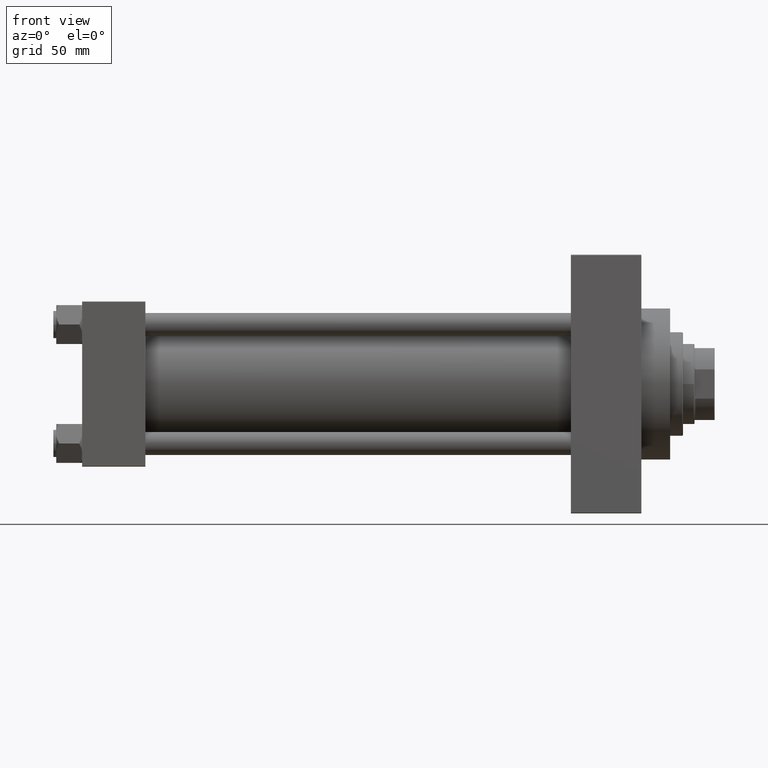
[diagram: clean part render]
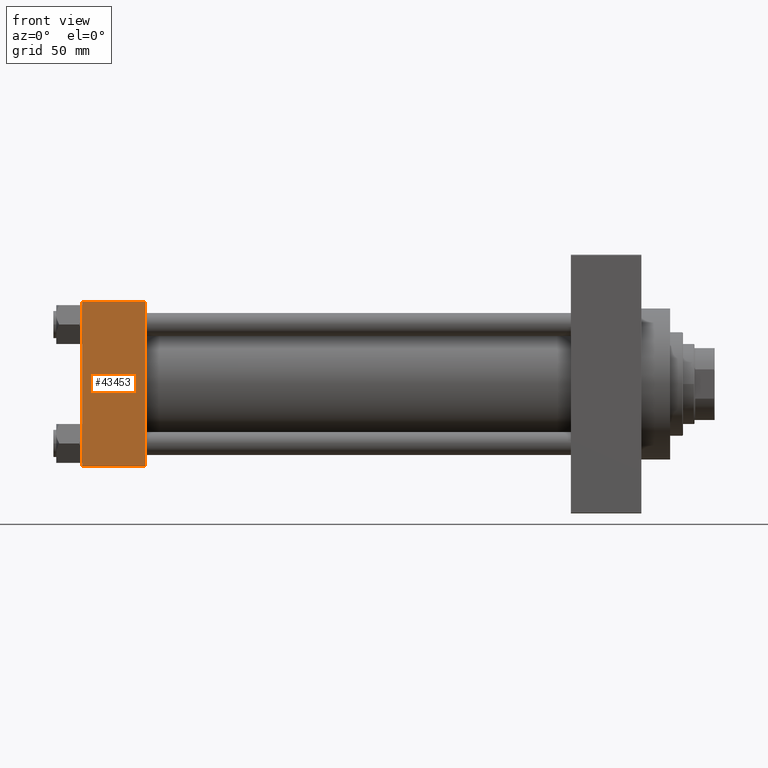
[diagram: same view with one face highlighted and labeled with its STEP entity id]
A machine part, front view. The second image highlights one B-rep face of the part: STEP entity #43453.
In plain terms, the highlighted planar face has unit normal (0, 1, 0).
Its self-contained STEP definition (entity closure, byte-faithful):
#82 = VERTEX_POINT ( 'NONE', #12409 ) ;
#1007 = CARTESIAN_POINT ( 'NONE',  ( 0.000000000000000000, -57.50000000000000711, 57.49999999999999289 ) ) ;
#2460 = FACE_OUTER_BOUND ( 'NONE', #9497, .T. ) ;
#3189 = PLANE ( 'NONE',  #14124 ) ;
#6359 = CARTESIAN_POINT ( 'NONE',  ( 44.00000000000000000, -57.50000000000000711, 57.49999999999999289 ) ) ;
#7266 = EDGE_CURVE ( 'NONE', #28153, #13354, #38454, .T. ) ;
#8195 = DIRECTION ( 'NONE',  ( -1.000000000000000000, 0.000000000000000000, 0.000000000000000000 ) ) ;
#9399 = DIRECTION ( 'NONE',  ( 0.000000000000000000, 0.000000000000000000, -1.000000000000000000 ) ) ;
#9497 = EDGE_LOOP ( 'NONE', ( #45176, #16132, #15648, #34898 ) ) ;
#12301 = EDGE_CURVE ( 'NONE', #13354, #82, #20179, .T. ) ;
#12409 = CARTESIAN_POINT ( 'NONE',  ( 0.000000000000000000, -57.50000000000000711, -57.00000000000000711 ) ) ;
#13354 = VERTEX_POINT ( 'NONE', #15645 ) ;
#13855 = VECTOR ( 'NONE', #43406, 1000.000000000000000 ) ;
#14124 = AXIS2_PLACEMENT_3D ( 'NONE', #18595, #33973, #30202 ) ;
#15645 = CARTESIAN_POINT ( 'NONE',  ( 0.000000000000000000, -57.50000000000000711, 57.00000000000000711 ) ) ;
#15648 = ORIENTED_EDGE ( 'NONE', *, *, #42070, .F. ) ;
#16132 = ORIENTED_EDGE ( 'NONE', *, *, #31460, .T. ) ;
#18595 = CARTESIAN_POINT ( 'NONE',  ( 44.00000000000000000, -57.50000000000000711, 57.49999999999999289 ) ) ;
#20179 = LINE ( 'NONE', #1007, #46444 ) ;
#24989 = CARTESIAN_POINT ( 'NONE',  ( 44.00000000000000000, -57.50000000000000711, -57.00000000000000711 ) ) ;
#27295 = CARTESIAN_POINT ( 'NONE',  ( 44.00000000000000000, -57.50000000000000711, -57.00000000000000711 ) ) ;
#27541 = LINE ( 'NONE', #27295, #13855 ) ;
#28153 = VERTEX_POINT ( 'NONE', #36862 ) ;
#30202 = DIRECTION ( 'NONE',  ( 0.000000000000000000, -0.000000000000000000, 1.000000000000000000 ) ) ;
#30414 = CARTESIAN_POINT ( 'NONE',  ( 44.00000000000000000, -57.50000000000000711, 57.00000000000000711 ) ) ;
#31460 = EDGE_CURVE ( 'NONE', #82, #37870, #27541, .T. ) ;
#31801 = VECTOR ( 'NONE', #9399, 1000.000000000000000 ) ;
#33973 = DIRECTION ( 'NONE',  ( -0.000000000000000000, 1.000000000000000000, 0.000000000000000000 ) ) ;
#34898 = ORIENTED_EDGE ( 'NONE', *, *, #7266, .T. ) ;
#36862 = CARTESIAN_POINT ( 'NONE',  ( 44.00000000000000000, -57.50000000000000711, 57.00000000000000711 ) ) ;
#37870 = VERTEX_POINT ( 'NONE', #24989 ) ;
#38454 = LINE ( 'NONE', #30414, #43989 ) ;
#39083 = DIRECTION ( 'NONE',  ( 0.000000000000000000, 0.000000000000000000, -1.000000000000000000 ) ) ;
#42070 = EDGE_CURVE ( 'NONE', #28153, #37870, #43939, .T. ) ;
#43406 = DIRECTION ( 'NONE',  ( 1.000000000000000000, 0.000000000000000000, 0.000000000000000000 ) ) ;
#43453 = ADVANCED_FACE ( 'NONE', ( #2460 ), #3189, .F. ) ;
#43939 = LINE ( 'NONE', #6359, #31801 ) ;
#43989 = VECTOR ( 'NONE', #8195, 1000.000000000000000 ) ;
#45176 = ORIENTED_EDGE ( 'NONE', *, *, #12301, .T. ) ;
#46444 = VECTOR ( 'NONE', #39083, 1000.000000000000000 ) ;